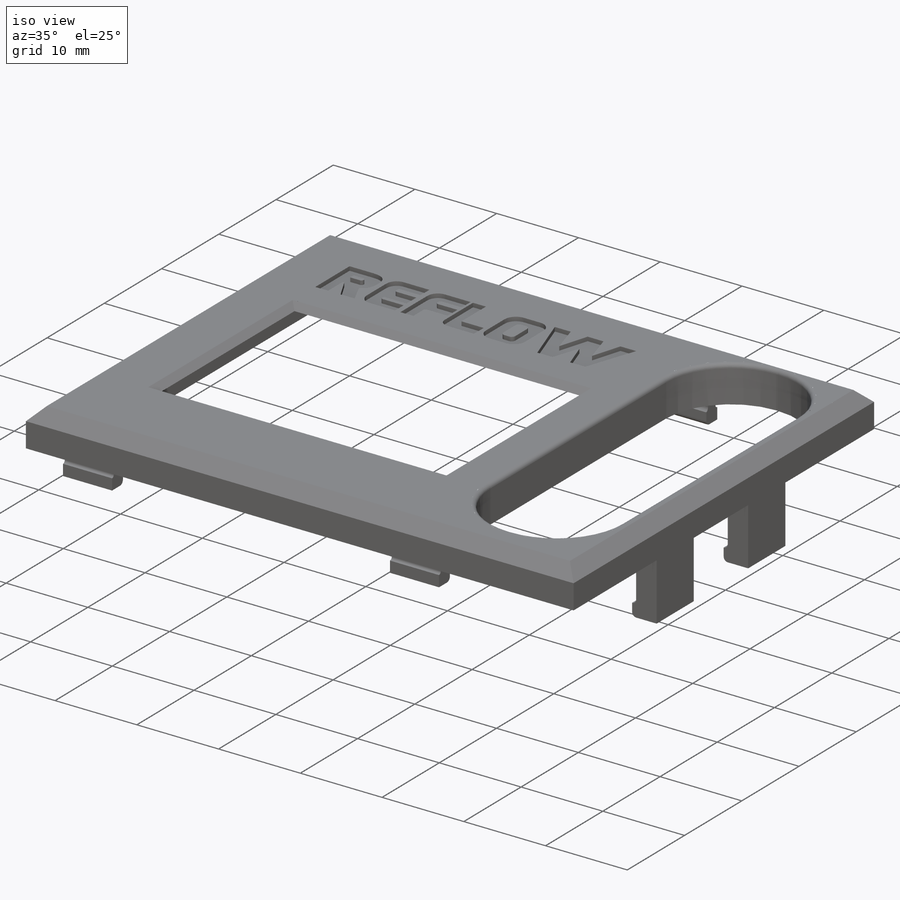
[diagram: iso view]
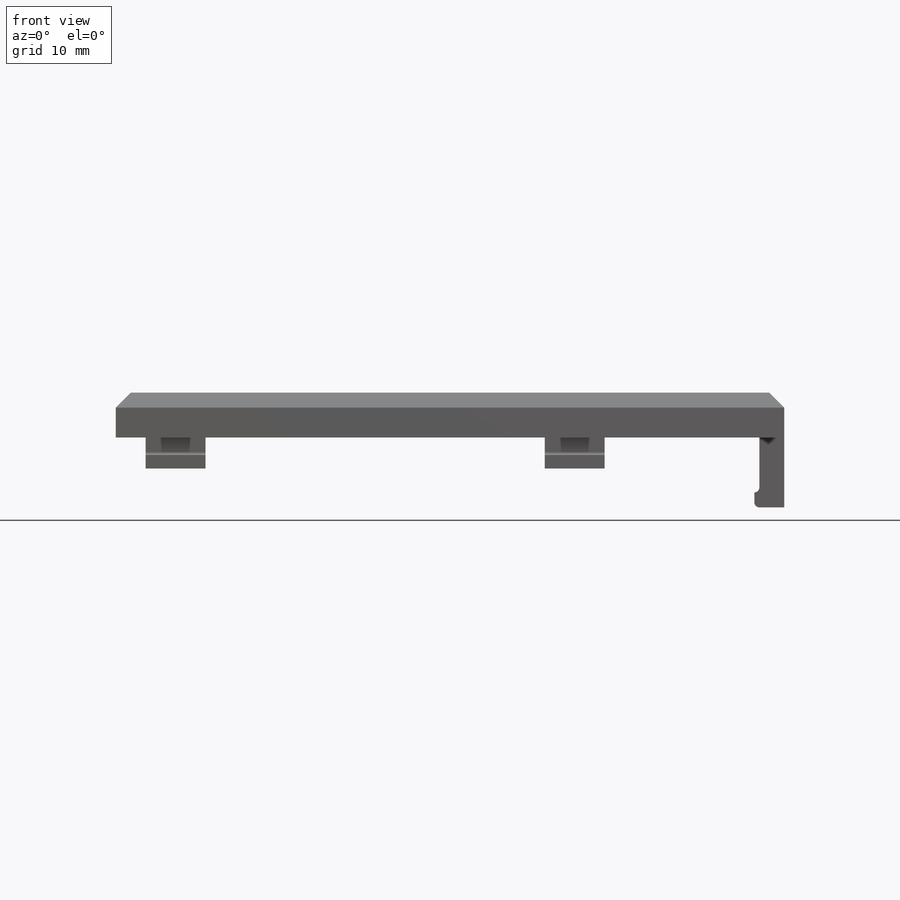
[diagram: front view]
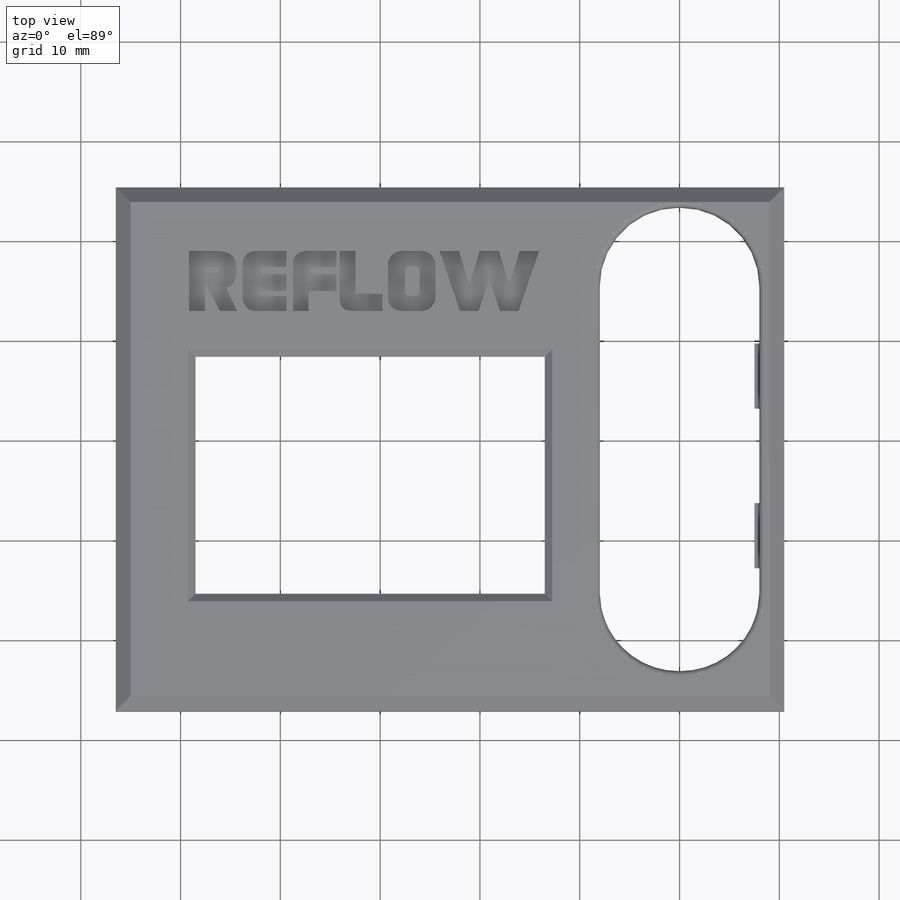
[diagram: top view]
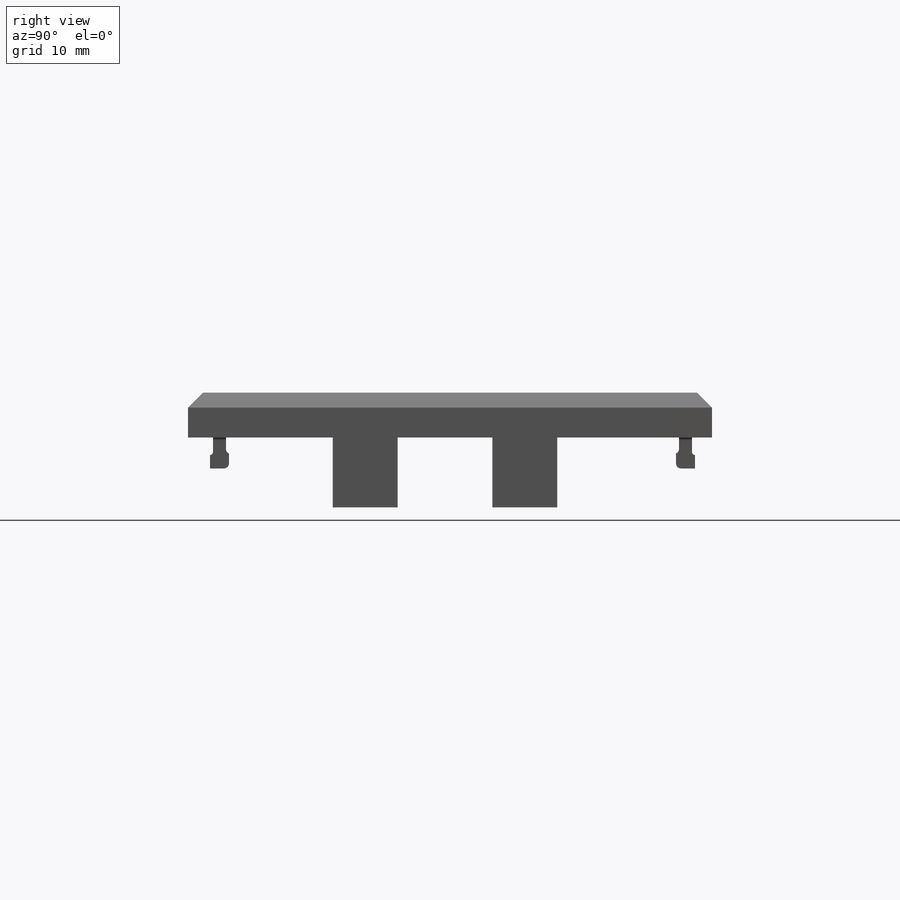
[diagram: right view]
SOLIDWORKS PART (.sldprt)
format: sldprt  version: not decoded by parser v0  size: 689,152 bytes
history: native  units: mm
features: sketch x12, extrude x10, fillet x3, chamfer x2, cut_extrude x2, material x1 (+12 scaffold rows collapsed)
feature tree (42):
  scaffold x12  (default folders/planes/origin — collapsed)
  material  "Material <not specified>"
  sketch  "Sketch1"  dims[c1.D5=7.9mm c1.D1=~48.493651mm c1.D2=~18.593421mm c2.D1=46.5mm c2.D2=16.0mm c2.D3=~61.587662mm c2.D4=~32.416194mm c3.D3=2.5mm c3.D4=2.0mm c3.D6=~35.545362mm c3.D7=~40.782195mm c4.D6=34.5mm c4.D7=41.0mm c4.D8=6.75mm c4.D9=48.5mm c4.D10=~43.763298mm c5.D9=2.0mm]
  extrude  "Boss-Extrude1"  Depth=4.5mm
  sketch  "Sketch3"  dims[c1.D1=34.5mm c1.D2=40.5mm c2.D1=~27.323105mm c2.D2=~36.886191mm c3.D1=8.25mm c3.D2=3.0mm c3.D3=3.0mm c3.D4=2.5mm]
  extrude  "Boss-Extrude2"  Depth=0.75mm
  chamfer  "Chamfer1"  Distance=0.75mm Angle=45deg
  sketch  "Sketch4"  dims[c1.D1=~4.169892mm c1.D2=~39.610541mm c2.D1=4.0mm c2.D2=~3.319035mm c2.D3=~37.978001mm c3.D2=4.0mm c3.D3=1.0mm c3.D4=1.0mm c4.D3=3.0mm c4.D5=3.0mm c4.D6=3.0mm c4.D7=3.0mm]
  cut_extrude  "Cut-Extrude2"  Depth=2.5mm
  sketch  "Sketch5"  dims[c1.D1=~3.733124mm c1.D2=~8.099616mm c2.D1=6.0mm c2.D2=1.3mm c2.D3=3.6mm c2.D4=~6.268953mm c3.D3=34.0mm c3.D4=~3.080108mm c3.D5=~4.442726mm c4.D4=1.3mm c4.D5=~1.382266mm c4.D6=~4.962921mm c5.D5=0.5mm c5.D6=2.0mm]
  extrude  "Boss-Extrude3"  Depth=1.6mm
  sketch  "Sketch6"  dims[c1.D1=~4.320793mm c1.D2=~5.618104mm c2.D1=0.3mm c2.D2=~3.994284mm c2.D3=~5.208652mm c3.D2=~3.014809mm c3.D3=6.0mm c4.D2=0.3mm c4.D3=3.0mm c4.D4=6.0mm]
  extrude  "Boss-Extrude4"  Depth=1.5mm
  sketch  "Sketch7"  dims[D1=~3.952992mm D2=50.5mm]
  extrude  "Boss-Extrude5"  Depth=3mm
  sketch  "Sketch8"  dims[D1=4.5mm D2=67.0mm]
  extrude  "Boss-Extrude6"  Depth=2mm
  sketch  "Sketch9"  dims[c1.D1=~7.263994mm c1.D2=2.5mm c2.D1=14.5mm c2.D2=6.5mm c2.D3=~6.381453mm c2.D4=2.5mm c3.D3=15.5mm c3.D4=6.5mm]
  extrude  "Boss-Extrude7"  Depth=5.5mm
  sketch  "Sketch10"  dims[c1.D1=~5.896022mm c1.D2=~3.018378mm c2.D1=0.5mm c2.D2=~5.945593mm c2.D3=3.0mm]
  extrude  "Boss-Extrude8"  Depth=1.5mm
  fillet  "Fillet1"  Radius=0.5mm
  fillet  "Fillet2"  Radius=0.5mm
  sketch  "Sketch11"  dims[c1.D1=~2.334905mm c1.D2=6.0mm c2.D1=1.75mm c2.D2=~1.014871mm c2.D3=6.0mm]
  extrude  "Boss-Extrude9"  Depth=0.3mm
  sketch  "Sketch12"  dims[c1.D1=~1.079802mm c1.D2=6.0mm c2.D1=1.75mm c2.D2=~1.121688mm c2.D3=6.0mm]
  extrude  "Boss-Extrude10"  Depth=0.3mm
  fillet  "Fillet3"  Radius=0.3mm
  chamfer  "Chamfer2"  Distance=1.5mm Angle=45deg
  sketch  "Sketch13"  dims[D1=~40.189577mm]
  cut_extrude  "Cut-Extrude3"  Depth=0.5mm
decode coverage: 29 of 29 modeling features carry decoded parameters
note: ~ marks probable driven/reference dimensions
note: suppression state not decoded; provenance and decode notes live in map.json
